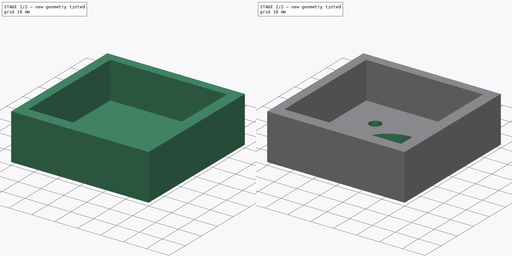
[diagram: build sequence overview — one tinted view per stage of 2, left to right]
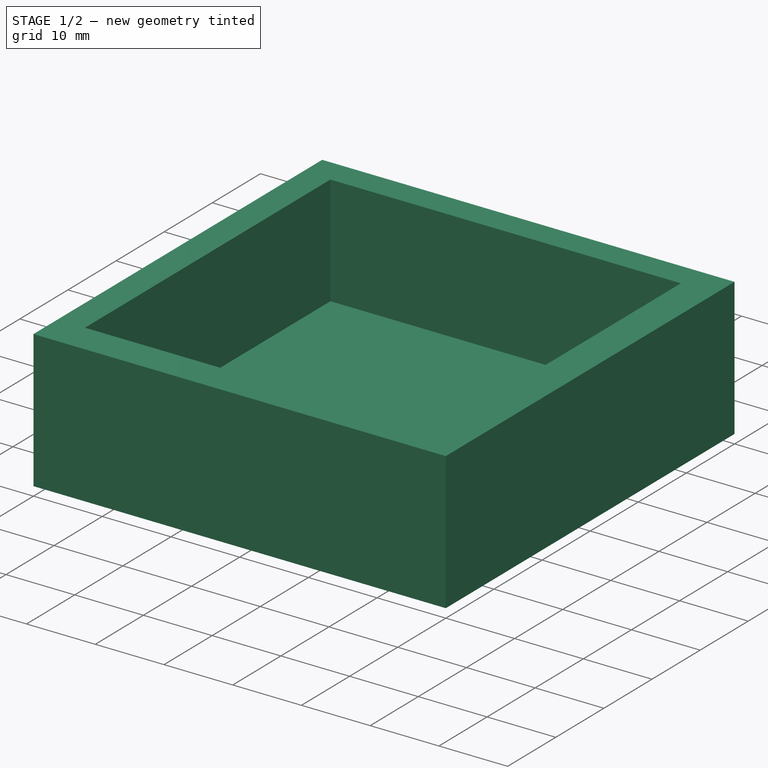
[diagram: stage 1 of 2 — iso view after this stage's code; geometry added in this stage tinted green]
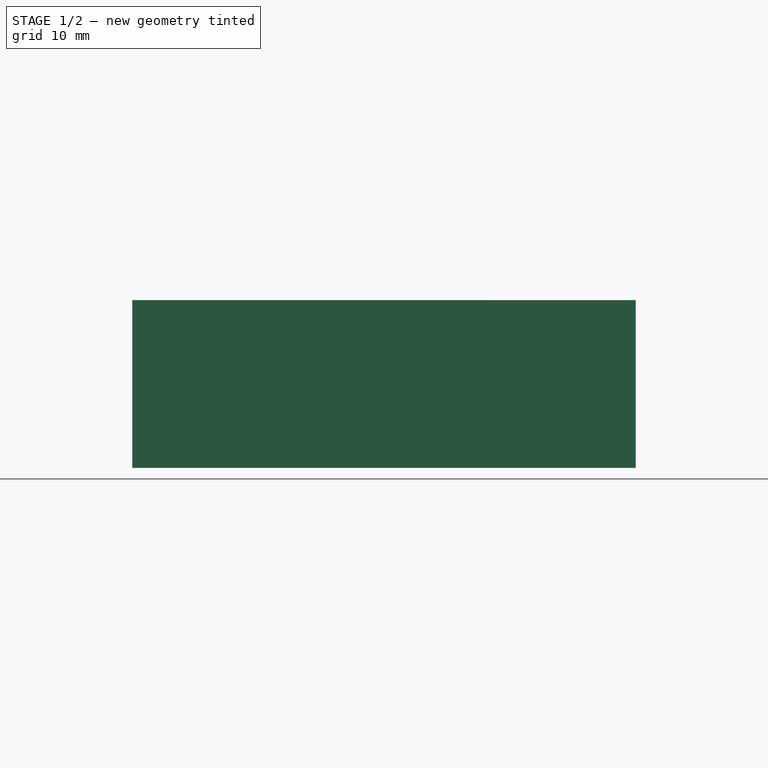
[diagram: stage 1 of 2 — front view after this stage's code; geometry added in this stage tinted green]
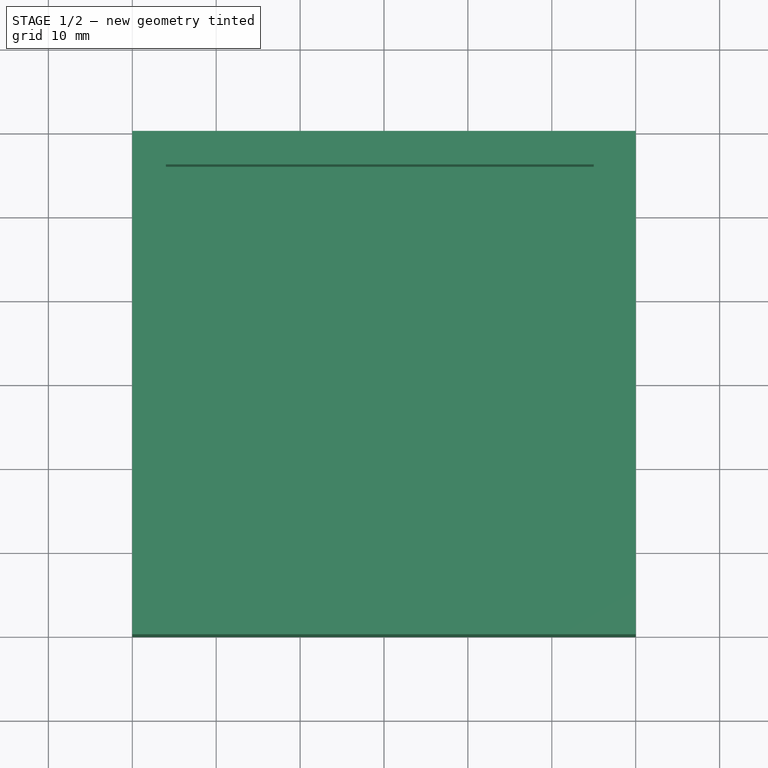
[diagram: stage 1 of 2 — top view after this stage's code; geometry added in this stage tinted green]
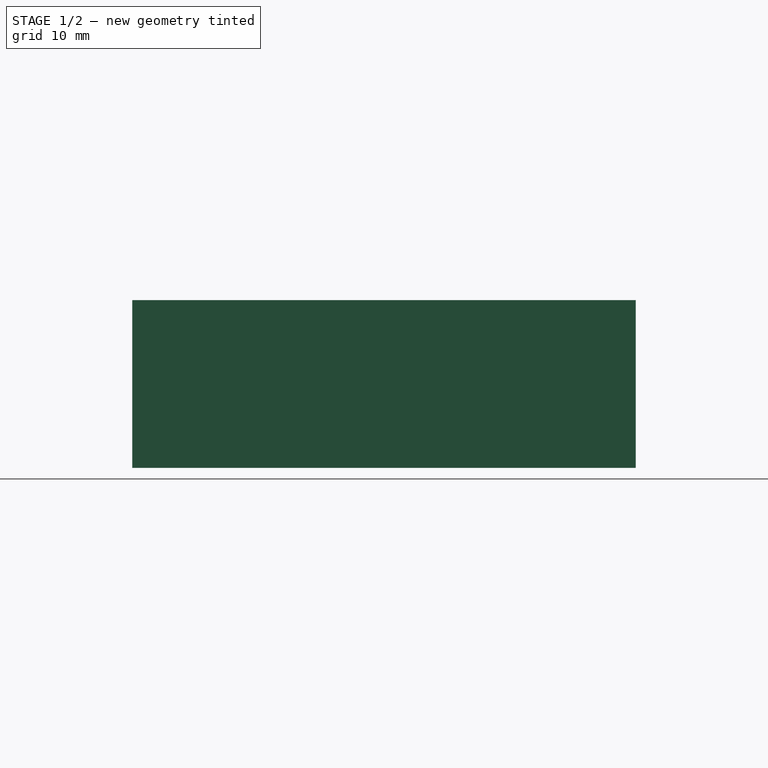
[diagram: stage 1 of 2 — right view after this stage's code; geometry added in this stage tinted green]
FCSTD DOCUMENT  (FreeCAD 0.19R)
Label: LACKclips
License: All rights reserved
LicenseURL: http://en.wikipedia.org/wiki/All_rights_reserved
objects: Sketcher::SketchObject×4, PartDesign::Pad×2, PartDesign::Pocket×2, PartDesign::Body×1
note: 13 computed .brp shape members not serialized (recipe doc carries the construction recipe); baked Part::Feature solids carry a one-line shape summary decoded from their .brp

FEATURE [Sketcher::SketchObject] Sketch
  FullyConstrained = true
  MapMode = 5
  Support = -> [XY_Plane]
  sketch-geometry (4):
    g0: LineSegment StartX=-10 StartY=-50 StartZ=0 EndX=50 EndY=-50 EndZ=0
    g1: LineSegment StartX=50 StartY=-50 StartZ=0 EndX=50 EndY=10 EndZ=0
    g2: LineSegment StartX=50 StartY=10 StartZ=0 EndX=-10 EndY=10 EndZ=0
    g3: LineSegment StartX=-10 StartY=10 StartZ=0 EndX=-10 EndY=-50 EndZ=0
  constraints (12):
    c: Coincident(g0,g1)
    c: Coincident(g1,g2)
    c: Coincident(g3,g0)
    c: Distance(g2) = 60
    c: Vertical(g3)
    c: Distance(g3) = 60
    c: Coincident(g3,g2)
    c: DistanceX(g2) = -10
    c: DistanceY(g2) = 10
    c: Horizontal(g0)
    c: Vertical(g1)
    c: Horizontal(g2)
FEATURE [PartDesign::Pad] Pad
  Direction = (1,1,1)
  Length = 4
  Length2 = 100
  Profile = -> Sketch
  Type = 0
FEATURE [Sketcher::SketchObject] Sketch001
  ExternalGeometry = -> [Pad]
  FullyConstrained = true
  MapMode = 5
  Placement = pos=(0,0,4) rot=(0,0,1;0rad)
  Support = -> [Pad]
  sketch-geometry (8):
    g0: LineSegment StartX=45 StartY=6 StartZ=0 EndX=45 EndY=-45 EndZ=0
    g1: LineSegment StartX=45 StartY=-45 StartZ=0 EndX=-6 EndY=-45 EndZ=0
    g2: LineSegment StartX=-10 StartY=-50 StartZ=0 EndX=50 EndY=-50 EndZ=0
    g3: LineSegment StartX=50 StartY=-50 StartZ=0 EndX=50 EndY=10 EndZ=0
    g4: LineSegment StartX=-6 StartY=-45 StartZ=0 EndX=-6 EndY=6 EndZ=0
    g5: LineSegment StartX=-6 StartY=6 StartZ=0 EndX=45 EndY=6 EndZ=0
    g6: LineSegment StartX=-10 StartY=-50 StartZ=0 EndX=-10 EndY=10 EndZ=0
    g7: LineSegment StartX=-10 StartY=10 StartZ=0 EndX=50 EndY=10 EndZ=0
  constraints (20):
    c: Vertical(g0)
    c: Coincident(g0,g1)
    c: Horizontal(g1)
    c: Coincident(g2,g-4)
    c: Coincident(g2,g3)
    c: Coincident(g1,g4)
    c: Vertical(g4)
    c: Coincident(g4,g5)
    c: Coincident(g5,g0)
    c: Coincident(g2,g6)
    c: Coincident(g6,g-6)
    c: Coincident(g6,g7)
    c: Coincident(g7,g3)
    c: Distance(g4,g7) = 4
    c: Distance(g4,g6) = 4
    c: Distance(g0,g7) = 4
    c: Coincident(g2,g-6)
    c: Distance(g4) = 51
    c: Distance(g5) = 51
    c: Coincident(g3,g-5)
FEATURE [PartDesign::Pad] Pad001
  BaseFeature = -> Pad
  Direction = (1,1,1)
  Length = 16
  Length2 = 100
  Profile = -> Sketch001
  Type = 0
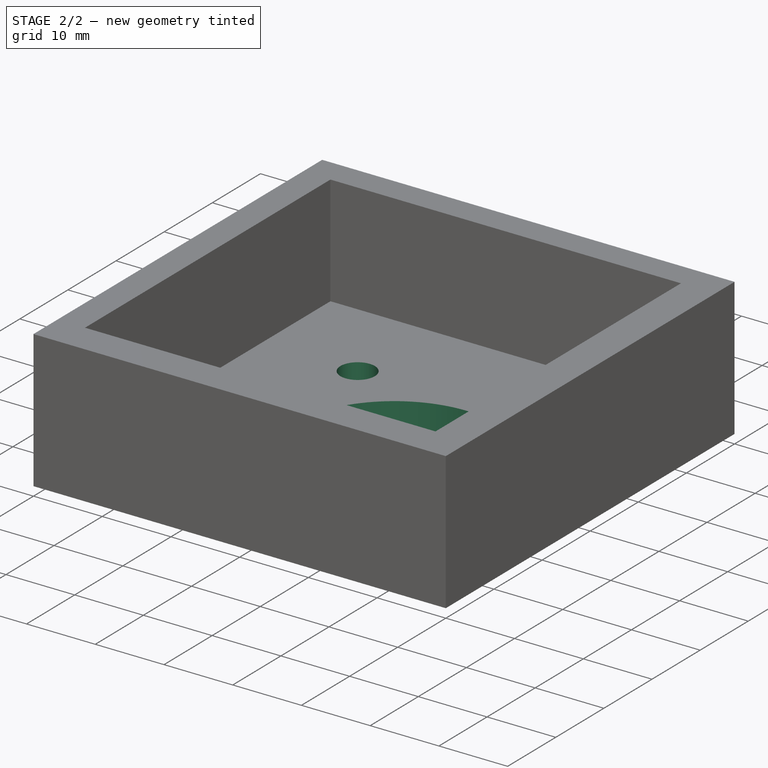
[diagram: stage 2 of 2 — iso view after this stage's code; geometry added in this stage tinted green]
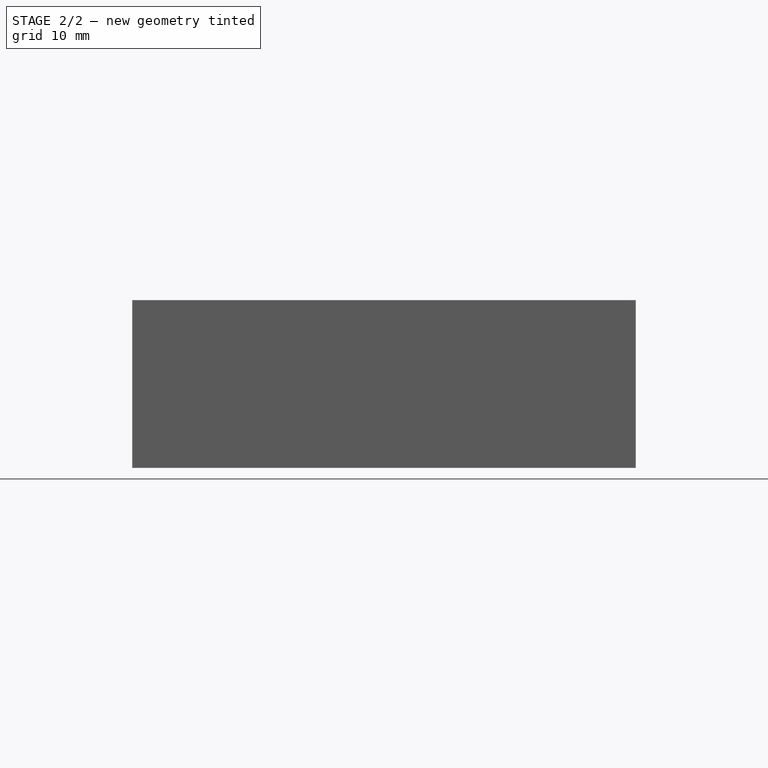
[diagram: stage 2 of 2 — front view after this stage's code; geometry added in this stage tinted green]
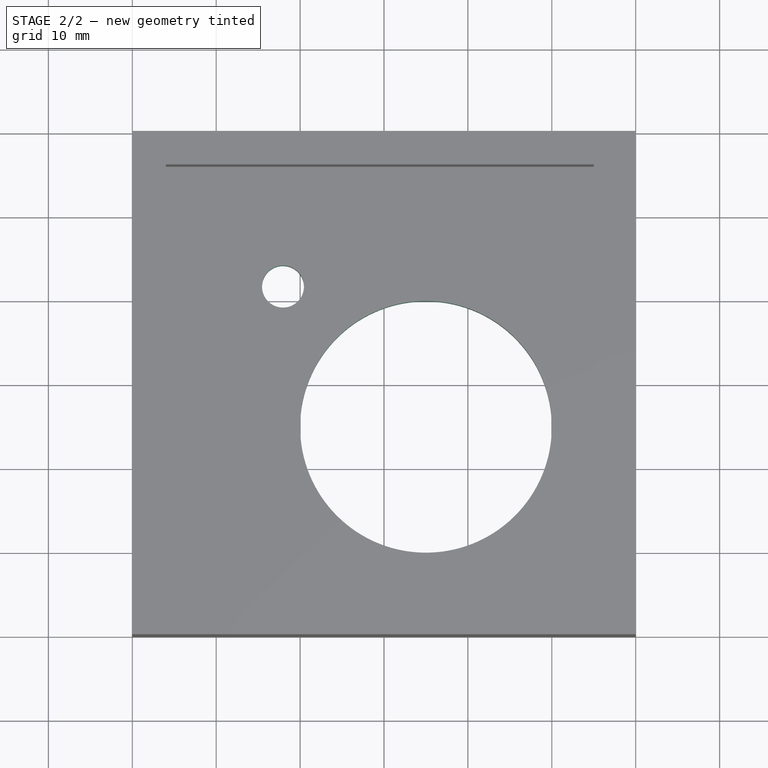
[diagram: stage 2 of 2 — top view after this stage's code; geometry added in this stage tinted green]
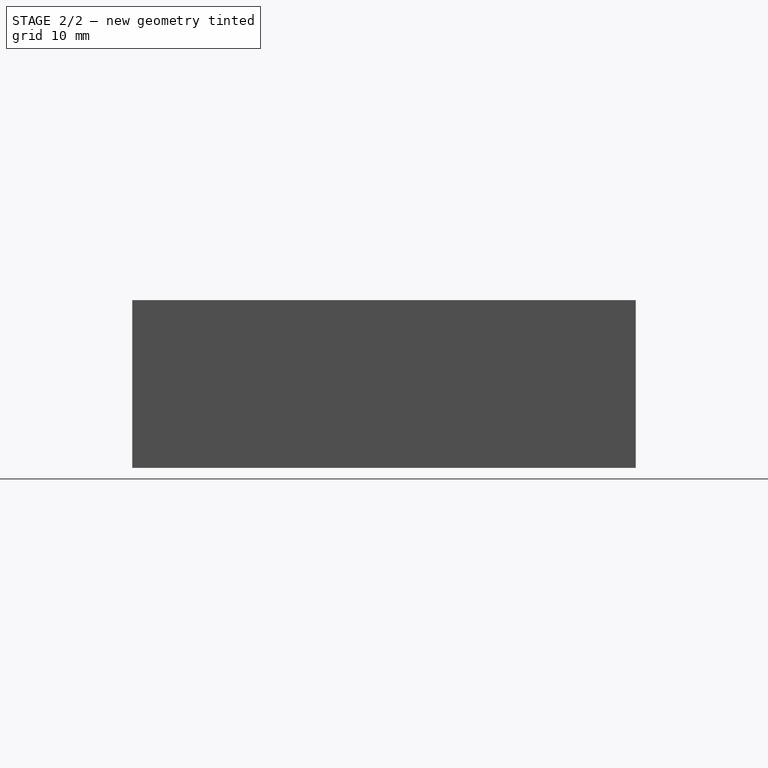
[diagram: stage 2 of 2 — right view after this stage's code; geometry added in this stage tinted green]
FEATURE [Sketcher::SketchObject] Sketch002
  FullyConstrained = true
  MapMode = 5
  Placement = pos=(0,0,0) rot=(1,0,0;3.14159rad)
  Support = -> [Pad001]
  sketch-geometry (1):
    g0: Circle CenterX=25 CenterY=25 CenterZ=0 NormalX=0 NormalY=0 NormalZ=1 AngleXU=0 Radius=15
  constraints (3):
    c: DistanceX(g0) = 25
    c: DistanceY(g0) = 25
    c: Radius(g0) = 15
FEATURE [PartDesign::Pocket] Pocket
  BaseFeature = -> Pad001
  Length = 5
  Length2 = 100
  Profile = -> Sketch002
  Type = 0
FEATURE [Sketcher::SketchObject] Sketch003
  FullyConstrained = false
  MapMode = 5
  Placement = pos=(0,0,0) rot=(1,0,0;3.14159rad)
  Support = -> [Pocket]
  sketch-geometry (1):
    g0: Circle CenterX=7.96048 CenterY=8.28135 CenterZ=0 NormalX=0 NormalY=0 NormalZ=1 AngleXU=0 Radius=2.5
  constraints (1):
    c: Radius(g0) = 2.5
FEATURE [PartDesign::Pocket] Pocket001
  BaseFeature = -> Pocket
  Length = 5
  Length2 = 100
  Profile = -> Sketch003
  Type = 0
FEATURE [PartDesign::Body] Body
  Group = -> [Sketch,Pad,Sketch001,Pad001,Sketch002,Pocket,Sketch003,Pocket001]
  Origin = -> Origin
  Tip = -> Pocket001
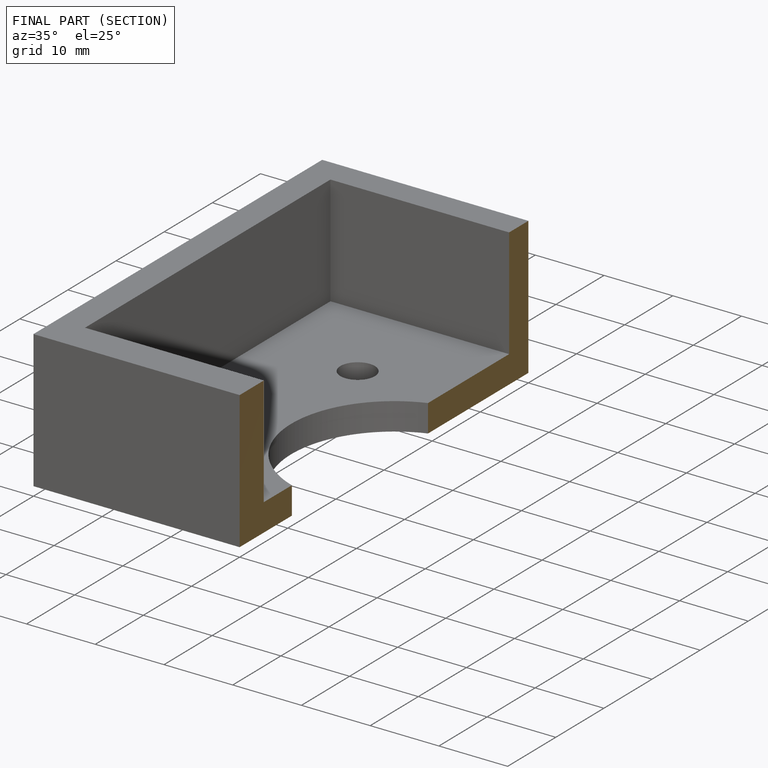
[diagram: finished part — half-section view (interior)]
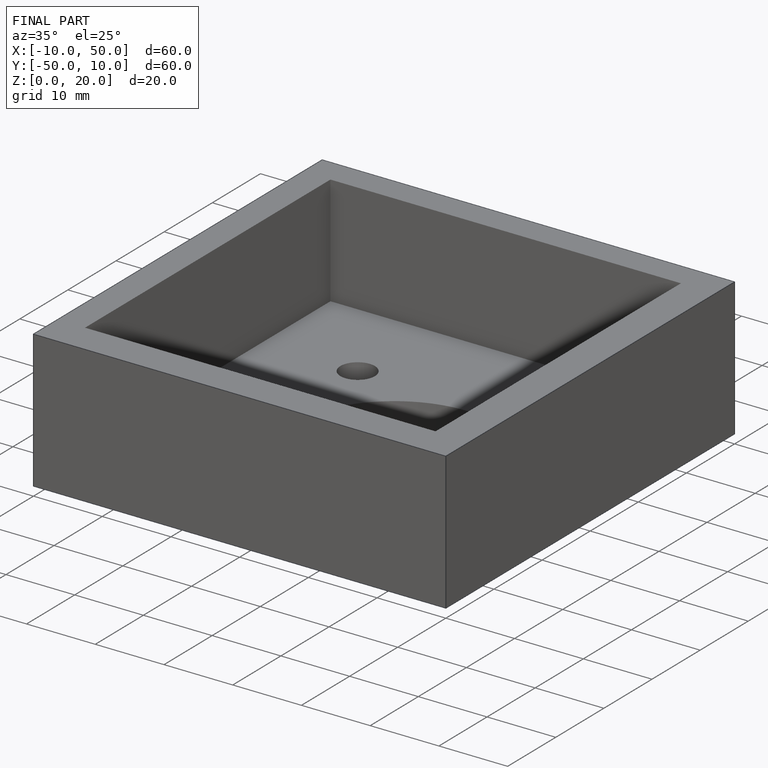
[diagram: finished part — iso view with bounding-box wireframe]
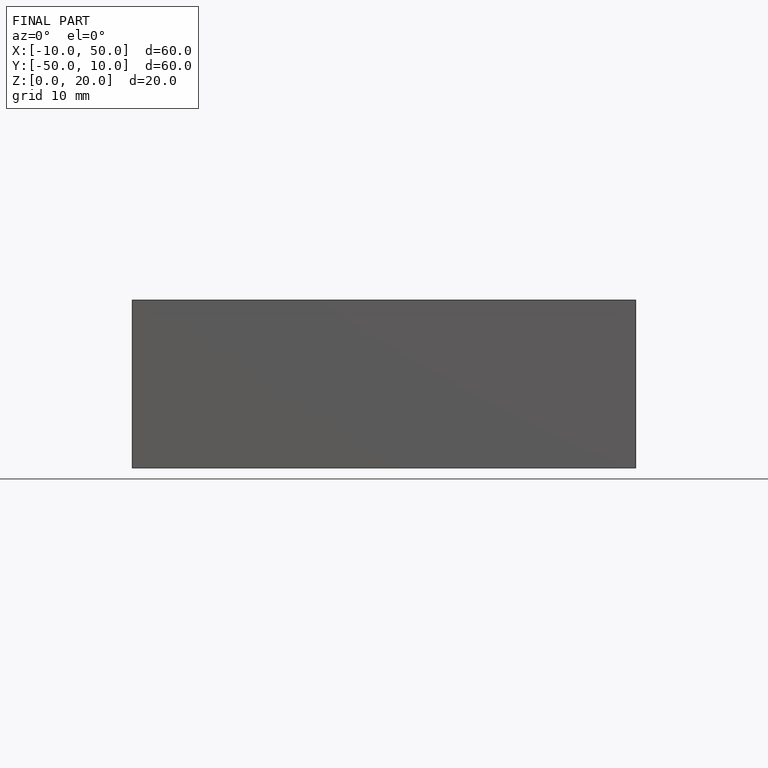
[diagram: finished part — front view with bounding-box wireframe]
